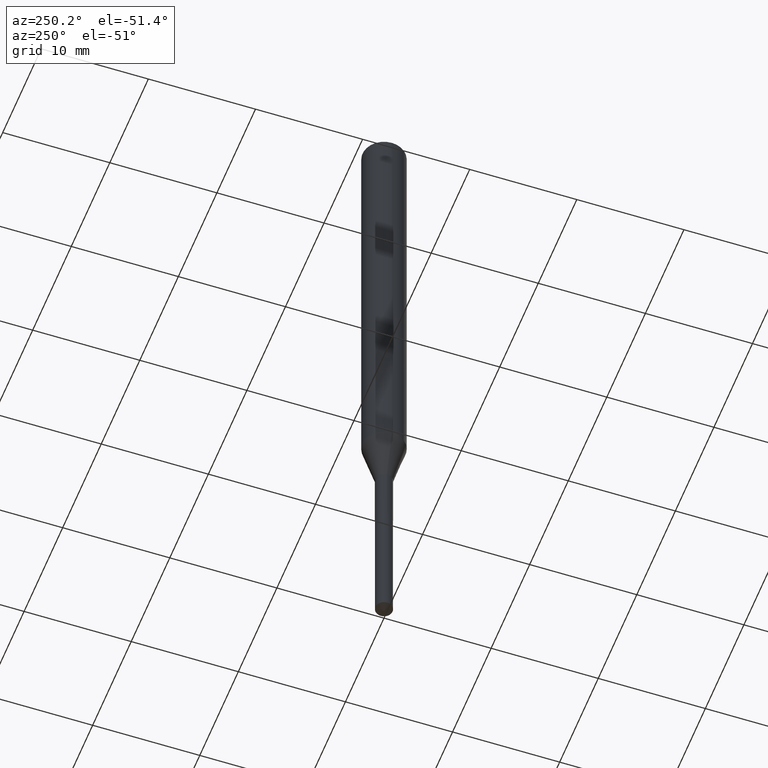
[diagram: clean part render]
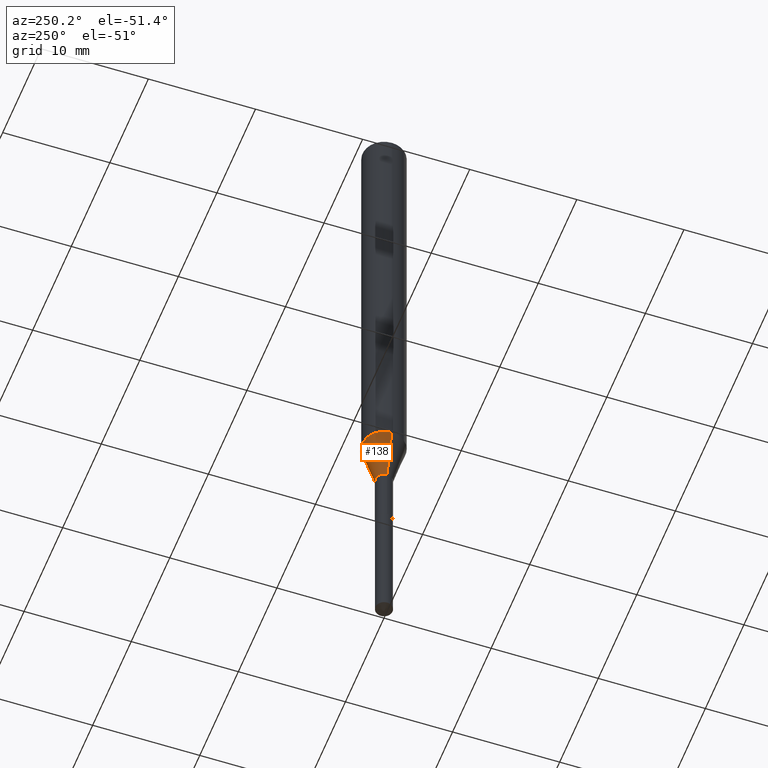
[diagram: same view with one face highlighted and labeled with its STEP entity id]
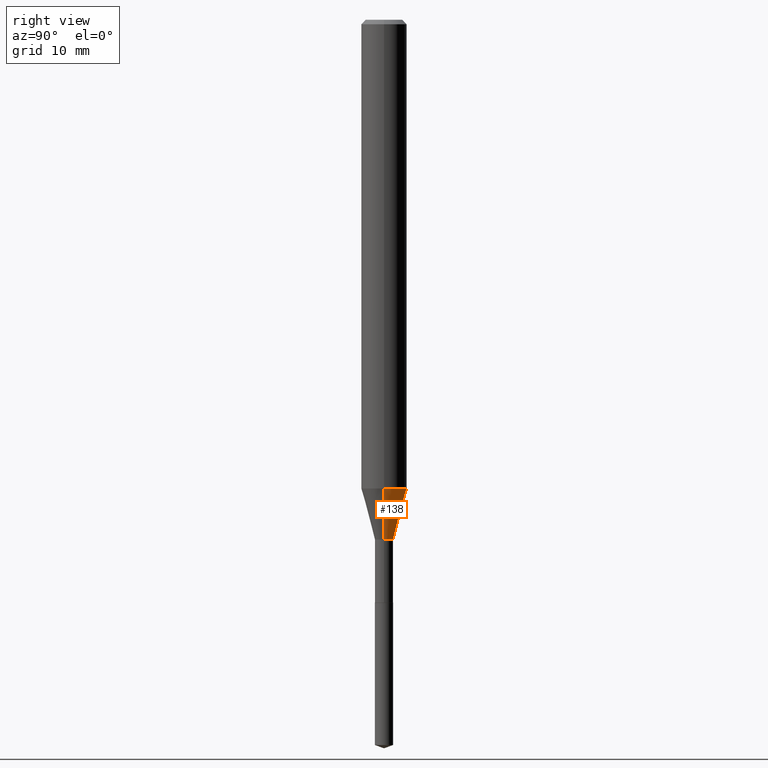
[diagram: same view with one face highlighted and labeled with its STEP entity id]
A machine part, auxiliary view. The second image highlights one B-rep face of the part: STEP entity #138.
A second angle (right view) of the same face is appended — the face is thin or edge-on in the first view.
In plain terms, the highlighted conical surface has half-angle 15 deg.
Its self-contained STEP definition (entity closure, byte-faithful):
#2 = CONICAL_SURFACE ( 'NONE', #432, 0.03150000000000002104, 0.2617993877991500740 ) ;
#22 = EDGE_CURVE ( 'NONE', #134, #48, #349, .T. ) ;
#25 = DIRECTION ( 'NONE',  ( -2.445468806185136597E-29, 3.491481338843145583E-15, 1.000000000000000000 ) ) ;
#29 = DIRECTION ( 'NONE',  ( 1.000000000000000000, -6.982962677686281699E-15, 0.000000000000000000 ) ) ;
#45 = VERTEX_POINT ( 'NONE', #360 ) ;
#48 = VERTEX_POINT ( 'NONE', #363 ) ;
#70 = EDGE_CURVE ( 'NONE', #187, #134, #454, .T. ) ;
#71 = AXIS2_PLACEMENT_3D ( 'NONE', #367, #25, #242 ) ;
#105 = DIRECTION ( 'NONE',  ( 0.2588190451025213501, 1.565188264969621968E-15, 0.9659258262890682012 ) ) ;
#123 = VECTOR ( 'NONE', #105, 39.37007874015747433 ) ;
#129 = DIRECTION ( 'NONE',  ( 1.000000000000000000, -6.982962677686269866E-15, 0.000000000000000000 ) ) ;
#134 = VERTEX_POINT ( 'NONE', #149 ) ;
#138 = ADVANCED_FACE ( 'NONE', ( #368 ), #2, .T. ) ;
#149 = CARTESIAN_POINT ( 'NONE',  ( 0.07875000000000016709, -6.210509438873335561E-15, -1.621260599342370323 ) ) ;
#150 = CIRCLE ( 'NONE', #71, 0.03150000000000002104 ) ;
#153 = DIRECTION ( 'NONE',  ( -2.445468806185136597E-29, 3.491481338843145583E-15, 1.000000000000000000 ) ) ;
#158 = EDGE_CURVE ( 'NONE', #45, #48, #252, .T. ) ;
#163 = ORIENTED_EDGE ( 'NONE', *, *, #70, .F. ) ;
#165 = CARTESIAN_POINT ( 'NONE',  ( 3.964742222388785374E-29, -5.660601128005539849E-15, -1.621260599342370323 ) ) ;
#187 = VERTEX_POINT ( 'NONE', #264 ) ;
#226 = ORIENTED_EDGE ( 'NONE', *, *, #158, .T. ) ;
#242 = DIRECTION ( 'NONE',  ( 1.000000000000000000, -6.982962677686281699E-15, 0.000000000000000000 ) ) ;
#252 = LINE ( 'NONE', #300, #439 ) ;
#262 = ORIENTED_EDGE ( 'NONE', *, *, #22, .F. ) ;
#264 = CARTESIAN_POINT ( 'NONE',  ( 0.03150000000000002104, -6.496250179051557038E-15, -1.797599999999999865 ) ) ;
#265 = ORIENTED_EDGE ( 'NONE', *, *, #433, .T. ) ;
#300 = CARTESIAN_POINT ( 'NONE',  ( -0.03150000000000002104, -6.052465892940006759E-15, -1.797599999999999865 ) ) ;
#301 = AXIS2_PLACEMENT_3D ( 'NONE', #165, #315, #129 ) ;
#307 = EDGE_LOOP ( 'NONE', ( #265, #226, #262, #163 ) ) ;
#315 = DIRECTION ( 'NONE',  ( -2.445468806185136597E-29, 3.491481338843145583E-15, 1.000000000000000000 ) ) ;
#349 = CIRCLE ( 'NONE', #301, 0.07875000000000018097 ) ;
#360 = CARTESIAN_POINT ( 'NONE',  ( -0.03150000000000002104, -6.432513636673082680E-15, -1.797599999999999865 ) ) ;
#363 = CARTESIAN_POINT ( 'NONE',  ( -0.07875000000000016709, -5.101048723594459469E-15, -1.621260599342370323 ) ) ;
#365 = DIRECTION ( 'NONE',  ( -0.2588190451025213501, 5.211531920934551042E-15, 0.9659258262890682012 ) ) ;
#367 = CARTESIAN_POINT ( 'NONE',  ( 4.395974725998400988E-29, -6.276286854704438910E-15, -1.797599999999999865 ) ) ;
#368 = FACE_OUTER_BOUND ( 'NONE', #307, .T. ) ;
#376 = CARTESIAN_POINT ( 'NONE',  ( 4.395974725998400988E-29, -6.276286854704438910E-15, -1.797599999999999865 ) ) ;
#405 = CARTESIAN_POINT ( 'NONE',  ( 0.03150000000000002104, -6.496250179051557038E-15, -1.797599999999999865 ) ) ;
#432 = AXIS2_PLACEMENT_3D ( 'NONE', #376, #153, #29 ) ;
#433 = EDGE_CURVE ( 'NONE', #187, #45, #150, .T. ) ;
#439 = VECTOR ( 'NONE', #365, 39.37007874015747433 ) ;
#454 = LINE ( 'NONE', #405, #123 ) ;